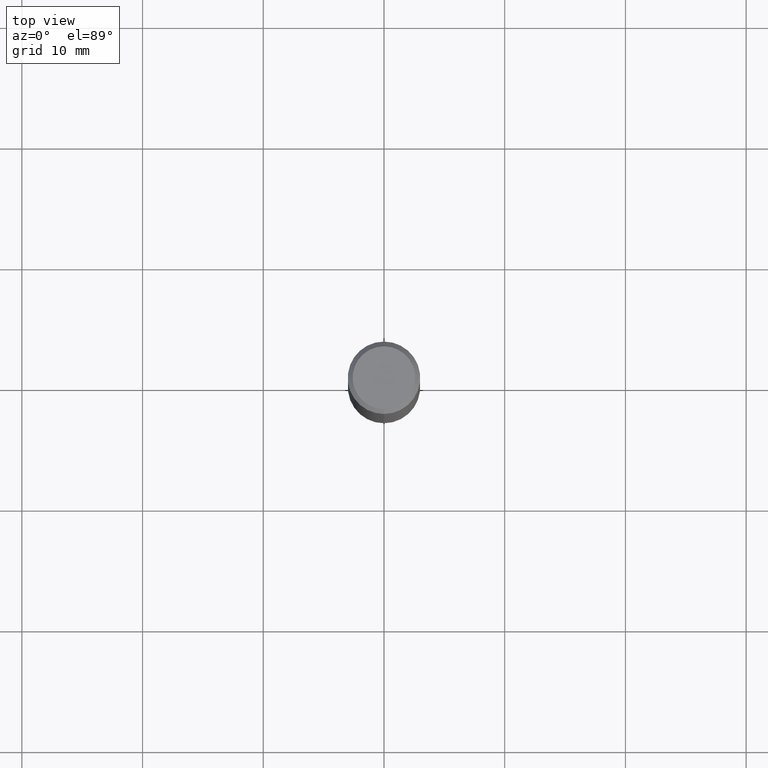
[diagram: clean part render]
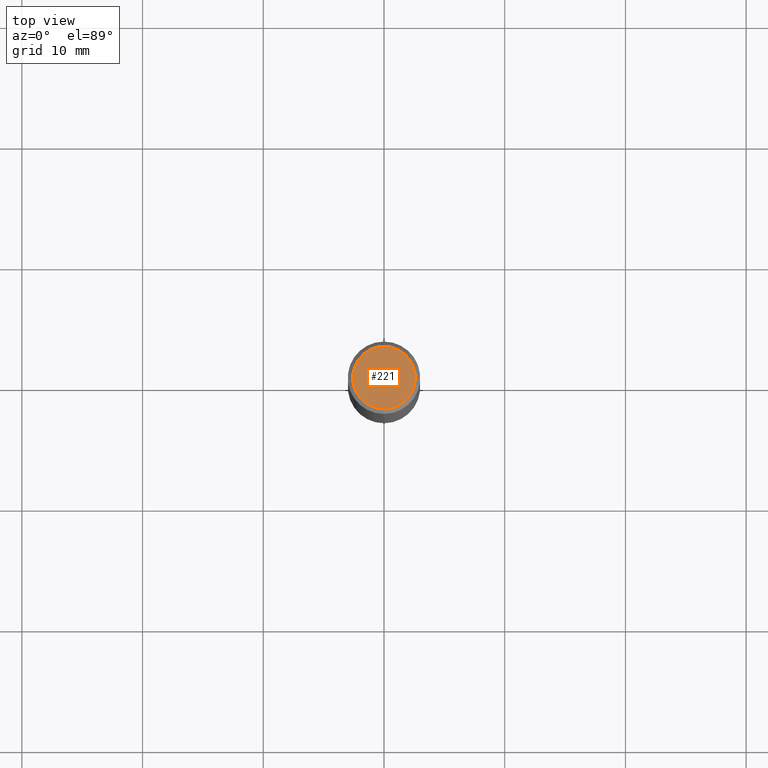
[diagram: same view with one face highlighted and labeled with its STEP entity id]
A machine part, top view. The second image highlights one B-rep face of the part: STEP entity #221.
In plain terms, the highlighted planar face has unit normal (-0, 0, 1).
Its self-contained STEP definition (entity closure, byte-faithful):
#221=ADVANCED_FACE('',(#426),#427,.T.);
#223=VERTEX_POINT('',#429);
#235=VERTEX_POINT('',#441);
#275=EDGE_CURVE('',#223,#235,#484,.T.);
#277=EDGE_CURVE('',#235,#223,#486,.T.);
#426=FACE_OUTER_BOUND('',#660,.T.);
#427=PLANE('',#661);
#429=CARTESIAN_POINT('',(0.0,2.6,0.0));
#441=CARTESIAN_POINT('',(3.18397651993818E-016,-2.6,0.0));
#484=CIRCLE('',#733,2.6);
#486=CIRCLE('',#736,2.6);
#660=EDGE_LOOP('',(#920,#921));
#661=AXIS2_PLACEMENT_3D('',#922,#923,#924);
#733=AXIS2_PLACEMENT_3D('',#978,#979,#980);
#736=AXIS2_PLACEMENT_3D('',#981,#982,#983);
#920=ORIENTED_EDGE('',*,*,#275,.F.);
#921=ORIENTED_EDGE('',*,*,#277,.F.);
#922=CARTESIAN_POINT('',(0.0,1.3,0.0));
#923=DIRECTION('',(-0.0,0.0,1.0));
#924=DIRECTION('',(0.0,-1.0,0.0));
#978=CARTESIAN_POINT('',(0.0,0.0,0.0));
#979=DIRECTION('',(0.0,0.0,-1.0));
#980=DIRECTION('',(0.0,1.0,0.0));
#981=CARTESIAN_POINT('',(0.0,0.0,0.0));
#982=DIRECTION('',(0.0,0.0,-1.0));
#983=DIRECTION('',(0.0,1.0,0.0));